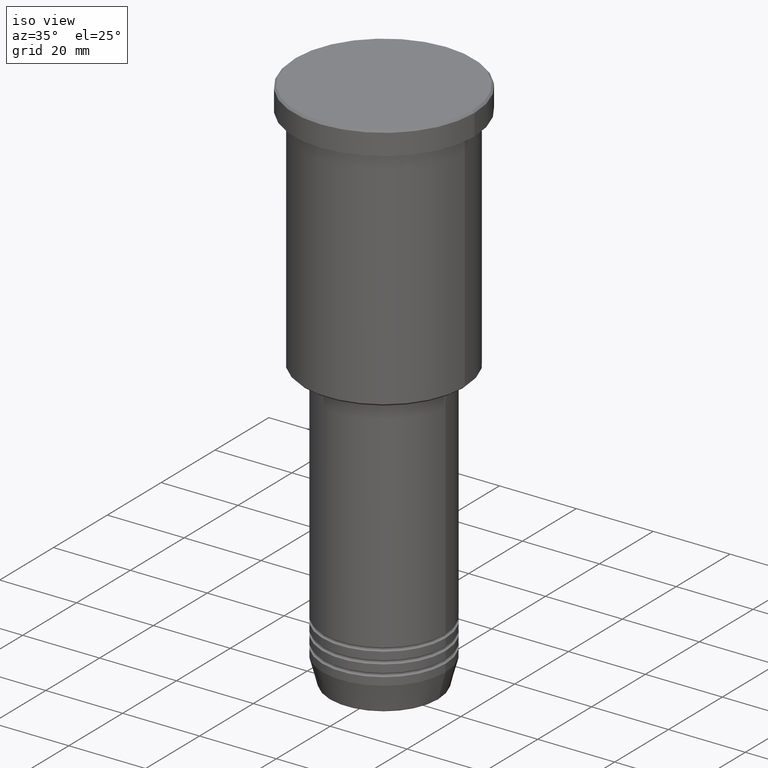
[diagram: clean part render]
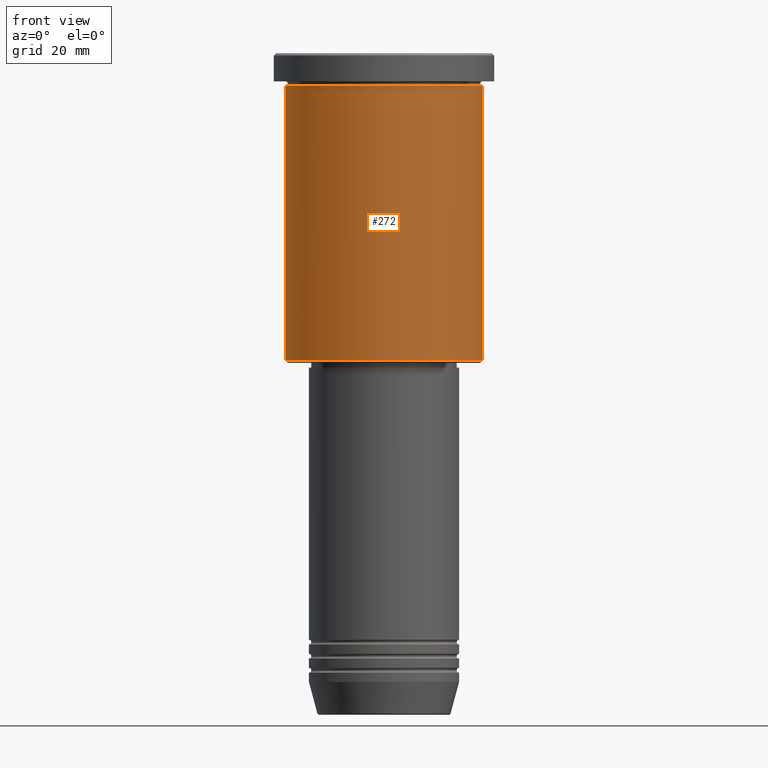
[diagram: tour spotlight — one face highlighted and labeled with its STEP entity id]
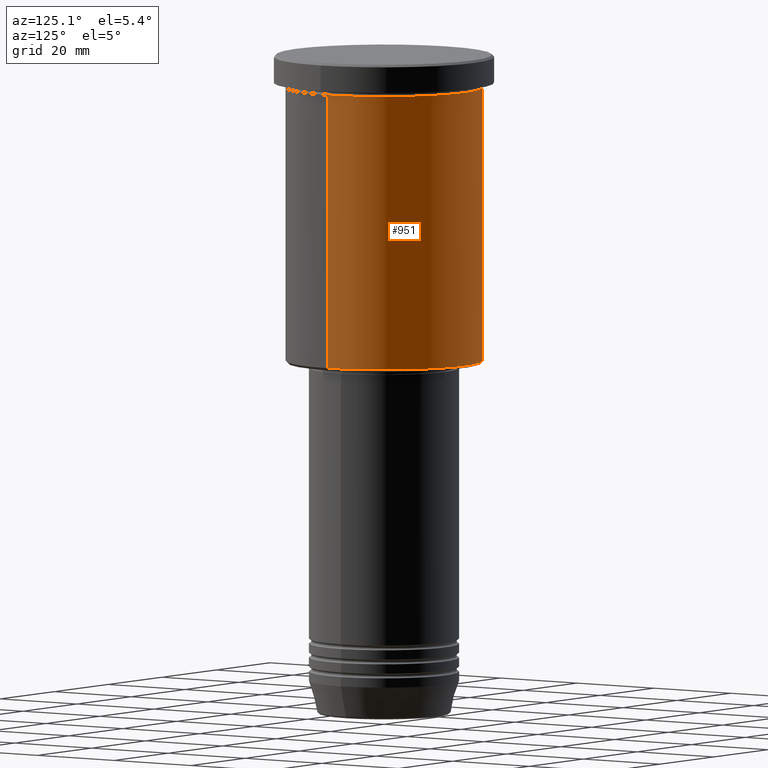
[diagram: tour spotlight — one face highlighted and labeled with its STEP entity id]
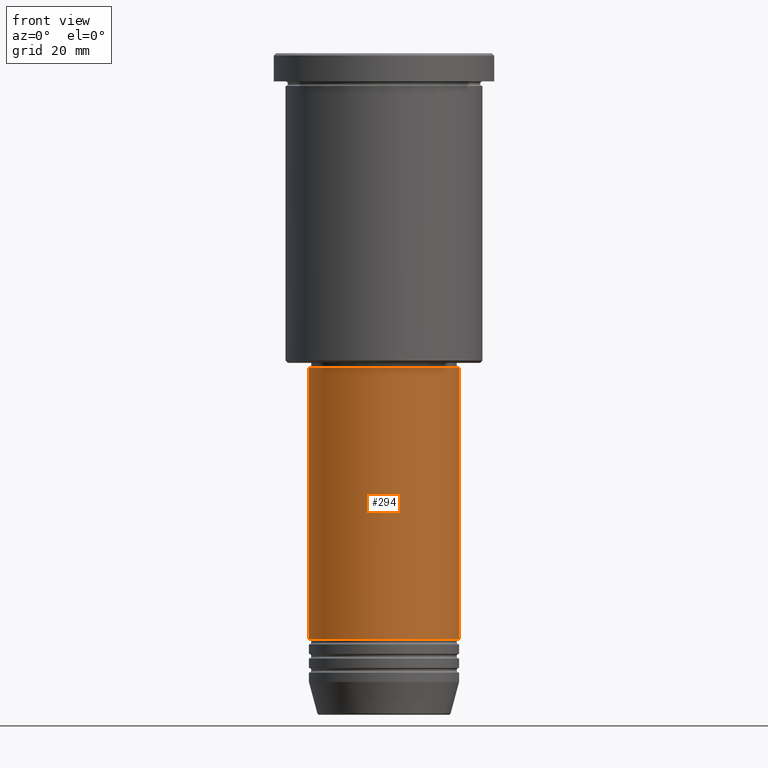
[diagram: tour spotlight — one face highlighted and labeled with its STEP entity id]
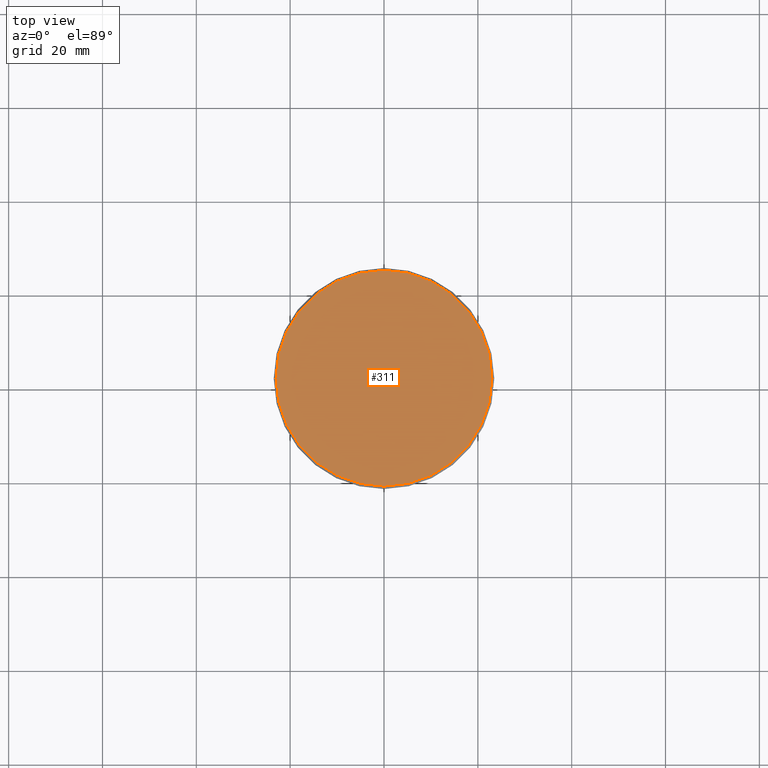
[diagram: tour spotlight — one face highlighted and labeled with its STEP entity id]
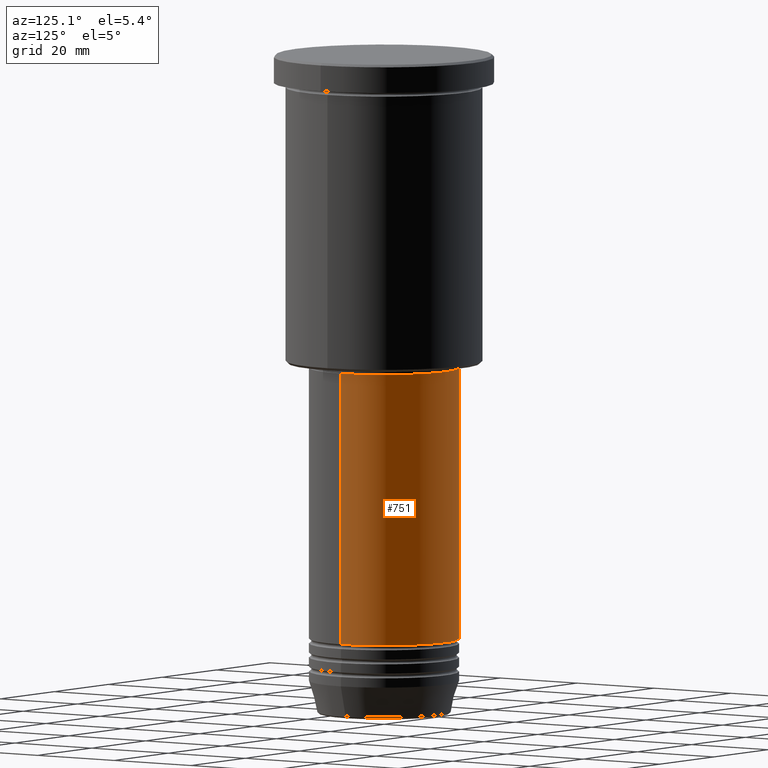
[diagram: tour spotlight — one face highlighted and labeled with its STEP entity id]
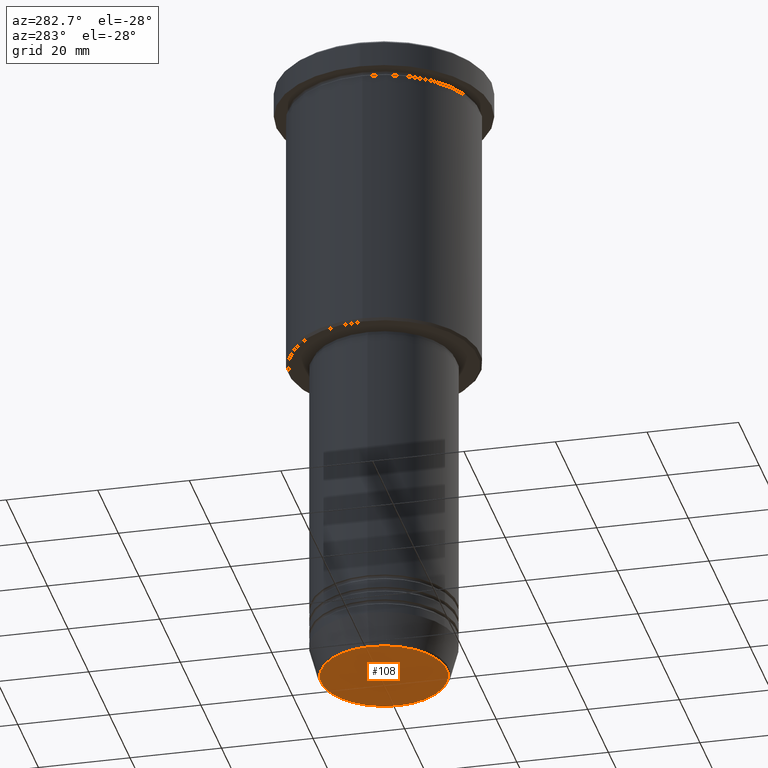
[diagram: tour spotlight — one face highlighted and labeled with its STEP entity id]
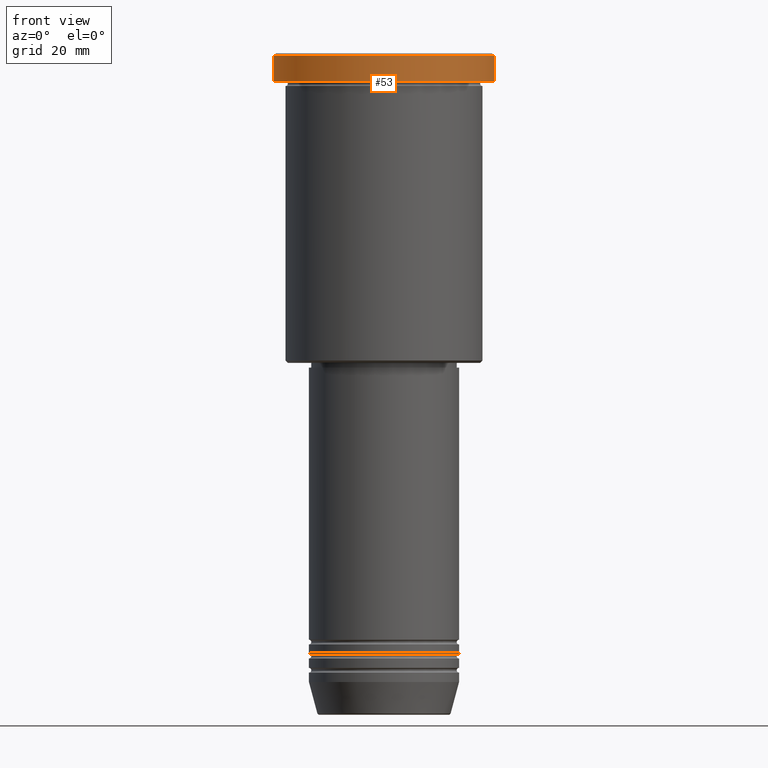
[diagram: tour spotlight — one face highlighted and labeled with its STEP entity id]
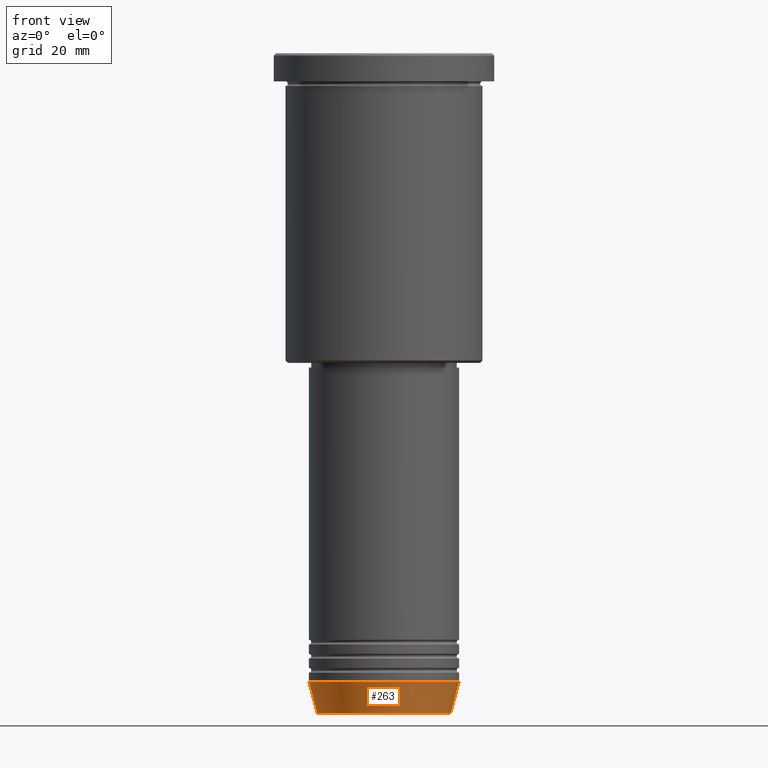
[diagram: tour spotlight — one face highlighted and labeled with its STEP entity id]
A machine part: a face-by-face anatomy tour. The part has 43 B-rep faces; the first image is the clean iso view, then the 8 largest visible faces are spotlighted one at a time (largest first), each with its STEP entity span.

Face 1 — front view, entity #272. In plain terms, the highlighted cylindrical surface (partial cylindrical patch) has radius 21 mm, axis along (-0, -0, 1).
Definition (entity closure, byte-faithful):
#36 = DIRECTION ( 'NONE',  ( -0.000000000000000000, -0.000000000000000000, 1.000000000000000000 ) ) ;
#49 = DIRECTION ( 'NONE',  ( -0.000000000000000000, -0.000000000000000000, 1.000000000000000000 ) ) ;
#94 = CARTESIAN_POINT ( 'NONE',  ( 21.00000000000000000, 0.000000000000000000, -65.50000000000001421 ) ) ;
#131 = CARTESIAN_POINT ( 'NONE',  ( 21.00000000000000000, 0.000000000000000000, 0.000000000000000000 ) ) ;
#143 = EDGE_CURVE ( 'NONE', #267, #1083, #398, .T. ) ;
#267 = VERTEX_POINT ( 'NONE', #94 ) ;
#272 = ADVANCED_FACE ( 'NONE', ( #367 ), #731, .T. ) ;
#283 = VERTEX_POINT ( 'NONE', #1146 ) ;
#367 = FACE_OUTER_BOUND ( 'NONE', #653, .T. ) ;
#398 = LINE ( 'NONE', #131, #1135 ) ;
#401 = EDGE_CURVE ( 'NONE', #283, #638, #707, .T. ) ;
#402 = CARTESIAN_POINT ( 'NONE',  ( 0.000000000000000000, 0.000000000000000000, -6.999999999999994671 ) ) ;
#416 = EDGE_CURVE ( 'NONE', #283, #267, #868, .T. ) ;
#477 = CIRCLE ( 'NONE', #1000, 21.00000000000000000 ) ;
#564 = CARTESIAN_POINT ( 'NONE',  ( 0.000000000000000000, 0.000000000000000000, 0.000000000000000000 ) ) ;
#582 = CARTESIAN_POINT ( 'NONE',  ( -21.00000000000000000, 2.571758278209441661E-15, -6.999999999999994671 ) ) ;
#617 = CARTESIAN_POINT ( 'NONE',  ( -21.00000000000000000, 2.571758278209441661E-15, 0.000000000000000000 ) ) ;
#638 = VERTEX_POINT ( 'NONE', #582 ) ;
#653 = EDGE_LOOP ( 'NONE', ( #682, #834, #800, #728 ) ) ;
#666 = DIRECTION ( 'NONE',  ( 1.000000000000000000, 0.000000000000000000, 0.000000000000000000 ) ) ;
#682 = ORIENTED_EDGE ( 'NONE', *, *, #401, .F. ) ;
#698 = DIRECTION ( 'NONE',  ( -0.000000000000000000, -0.000000000000000000, 1.000000000000000000 ) ) ;
#707 = LINE ( 'NONE', #617, #1075 ) ;
#713 = DIRECTION ( 'NONE',  ( -1.000000000000000000, 0.000000000000000000, 0.000000000000000000 ) ) ;
#728 = ORIENTED_EDGE ( 'NONE', *, *, #1124, .F. ) ;
#731 = CYLINDRICAL_SURFACE ( 'NONE', #1096, 21.00000000000000000 ) ;
#767 = DIRECTION ( 'NONE',  ( 1.000000000000000000, 0.000000000000000000, 0.000000000000000000 ) ) ;
#800 = ORIENTED_EDGE ( 'NONE', *, *, #143, .T. ) ;
#809 = DIRECTION ( 'NONE',  ( -0.000000000000000000, -0.000000000000000000, 1.000000000000000000 ) ) ;
#816 = CARTESIAN_POINT ( 'NONE',  ( 0.000000000000000000, 0.000000000000000000, -65.50000000000001421 ) ) ;
#834 = ORIENTED_EDGE ( 'NONE', *, *, #416, .T. ) ;
#868 = CIRCLE ( 'NONE', #1097, 21.00000000000000000 ) ;
#1000 = AXIS2_PLACEMENT_3D ( 'NONE', #402, #36, #666 ) ;
#1064 = DIRECTION ( 'NONE',  ( -0.000000000000000000, -0.000000000000000000, 1.000000000000000000 ) ) ;
#1075 = VECTOR ( 'NONE', #809, 1000.000000000000000 ) ;
#1083 = VERTEX_POINT ( 'NONE', #1142 ) ;
#1096 = AXIS2_PLACEMENT_3D ( 'NONE', #564, #1064, #767 ) ;
#1097 = AXIS2_PLACEMENT_3D ( 'NONE', #816, #698, #713 ) ;
#1124 = EDGE_CURVE ( 'NONE', #638, #1083, #477, .T. ) ;
#1135 = VECTOR ( 'NONE', #49, 1000.000000000000000 ) ;
#1142 = CARTESIAN_POINT ( 'NONE',  ( 21.00000000000000000, 0.000000000000000000, -6.999999999999994671 ) ) ;
#1146 = CARTESIAN_POINT ( 'NONE',  ( -21.00000000000000000, 2.571758278209441661E-15, -65.50000000000001421 ) ) ;

Face 2 — auxiliary view, entity #951. In plain terms, the highlighted cylindrical surface (partial cylindrical patch) has radius 21 mm, axis along (-0, -0, 1).
Definition (entity closure, byte-faithful):
#5 = FACE_OUTER_BOUND ( 'NONE', #824, .T. ) ;
#22 = AXIS2_PLACEMENT_3D ( 'NONE', #750, #396, #660 ) ;
#40 = AXIS2_PLACEMENT_3D ( 'NONE', #676, #219, #403 ) ;
#49 = DIRECTION ( 'NONE',  ( -0.000000000000000000, -0.000000000000000000, 1.000000000000000000 ) ) ;
#71 = ORIENTED_EDGE ( 'NONE', *, *, #401, .T. ) ;
#94 = CARTESIAN_POINT ( 'NONE',  ( 21.00000000000000000, 0.000000000000000000, -65.50000000000001421 ) ) ;
#102 = EDGE_CURVE ( 'NONE', #267, #283, #805, .T. ) ;
#131 = CARTESIAN_POINT ( 'NONE',  ( 21.00000000000000000, 0.000000000000000000, 0.000000000000000000 ) ) ;
#143 = EDGE_CURVE ( 'NONE', #267, #1083, #398, .T. ) ;
#155 = CIRCLE ( 'NONE', #40, 21.00000000000000000 ) ;
#178 = DIRECTION ( 'NONE',  ( 1.000000000000000000, 0.000000000000000000, 0.000000000000000000 ) ) ;
#181 = ORIENTED_EDGE ( 'NONE', *, *, #102, .T. ) ;
#219 = DIRECTION ( 'NONE',  ( -0.000000000000000000, -0.000000000000000000, 1.000000000000000000 ) ) ;
#267 = VERTEX_POINT ( 'NONE', #94 ) ;
#283 = VERTEX_POINT ( 'NONE', #1146 ) ;
#396 = DIRECTION ( 'NONE',  ( -0.000000000000000000, -0.000000000000000000, 1.000000000000000000 ) ) ;
#398 = LINE ( 'NONE', #131, #1135 ) ;
#401 = EDGE_CURVE ( 'NONE', #283, #638, #707, .T. ) ;
#403 = DIRECTION ( 'NONE',  ( 1.000000000000000000, 0.000000000000000000, 0.000000000000000000 ) ) ;
#467 = ORIENTED_EDGE ( 'NONE', *, *, #727, .F. ) ;
#565 = CYLINDRICAL_SURFACE ( 'NONE', #683, 21.00000000000000000 ) ;
#582 = CARTESIAN_POINT ( 'NONE',  ( -21.00000000000000000, 2.571758278209441661E-15, -6.999999999999994671 ) ) ;
#617 = CARTESIAN_POINT ( 'NONE',  ( -21.00000000000000000, 2.571758278209441661E-15, 0.000000000000000000 ) ) ;
#638 = VERTEX_POINT ( 'NONE', #582 ) ;
#660 = DIRECTION ( 'NONE',  ( -1.000000000000000000, 0.000000000000000000, 0.000000000000000000 ) ) ;
#676 = CARTESIAN_POINT ( 'NONE',  ( 0.000000000000000000, 0.000000000000000000, -6.999999999999994671 ) ) ;
#683 = AXIS2_PLACEMENT_3D ( 'NONE', #841, #911, #178 ) ;
#707 = LINE ( 'NONE', #617, #1075 ) ;
#727 = EDGE_CURVE ( 'NONE', #1083, #638, #155, .T. ) ;
#750 = CARTESIAN_POINT ( 'NONE',  ( 0.000000000000000000, 0.000000000000000000, -65.50000000000001421 ) ) ;
#805 = CIRCLE ( 'NONE', #22, 21.00000000000000000 ) ;
#809 = DIRECTION ( 'NONE',  ( -0.000000000000000000, -0.000000000000000000, 1.000000000000000000 ) ) ;
#824 = EDGE_LOOP ( 'NONE', ( #181, #71, #467, #1094 ) ) ;
#841 = CARTESIAN_POINT ( 'NONE',  ( 0.000000000000000000, 0.000000000000000000, 0.000000000000000000 ) ) ;
#911 = DIRECTION ( 'NONE',  ( -0.000000000000000000, -0.000000000000000000, 1.000000000000000000 ) ) ;
#951 = ADVANCED_FACE ( 'NONE', ( #5 ), #565, .T. ) ;
#1075 = VECTOR ( 'NONE', #809, 1000.000000000000000 ) ;
#1083 = VERTEX_POINT ( 'NONE', #1142 ) ;
#1094 = ORIENTED_EDGE ( 'NONE', *, *, #143, .F. ) ;
#1135 = VECTOR ( 'NONE', #49, 1000.000000000000000 ) ;
#1142 = CARTESIAN_POINT ( 'NONE',  ( 21.00000000000000000, 0.000000000000000000, -6.999999999999994671 ) ) ;
#1146 = CARTESIAN_POINT ( 'NONE',  ( -21.00000000000000000, 2.571758278209441661E-15, -65.50000000000001421 ) ) ;

Face 3 — front view, entity #294. In plain terms, the highlighted cylindrical surface (partial cylindrical patch) has radius 16 mm, axis along (-0, -0, 1).
Definition (entity closure, byte-faithful):
#41 = EDGE_CURVE ( 'NONE', #925, #736, #394, .T. ) ;
#79 = AXIS2_PLACEMENT_3D ( 'NONE', #1041, #1134, #490 ) ;
#97 = AXIS2_PLACEMENT_3D ( 'NONE', #1165, #709, #1012 ) ;
#98 = CARTESIAN_POINT ( 'NONE',  ( -16.00000000000000000, 1.959434878635765131E-15, -67.00000000000000000 ) ) ;
#167 = VERTEX_POINT ( 'NONE', #529 ) ;
#175 = ORIENTED_EDGE ( 'NONE', *, *, #658, .T. ) ;
#216 = LINE ( 'NONE', #1034, #869 ) ;
#221 = ORIENTED_EDGE ( 'NONE', *, *, #675, .F. ) ;
#241 = ORIENTED_EDGE ( 'NONE', *, *, #916, .T. ) ;
#246 = AXIS2_PLACEMENT_3D ( 'NONE', #520, #774, #1069 ) ;
#256 = CARTESIAN_POINT ( 'NONE',  ( -16.00000000000000000, 1.959434878635765131E-15, -124.9999999999999716 ) ) ;
#294 = ADVANCED_FACE ( 'NONE', ( #931 ), #392, .T. ) ;
#337 = VECTOR ( 'NONE', #466, 1000.000000000000000 ) ;
#361 = LINE ( 'NONE', #1009, #337 ) ;
#374 = VERTEX_POINT ( 'NONE', #256 ) ;
#392 = CYLINDRICAL_SURFACE ( 'NONE', #97, 16.00000000000000000 ) ;
#394 = CIRCLE ( 'NONE', #246, 16.00000000000000000 ) ;
#466 = DIRECTION ( 'NONE',  ( -0.000000000000000000, -0.000000000000000000, 1.000000000000000000 ) ) ;
#490 = DIRECTION ( 'NONE',  ( 1.000000000000000000, 0.000000000000000000, 0.000000000000000000 ) ) ;
#520 = CARTESIAN_POINT ( 'NONE',  ( 0.000000000000000000, 0.000000000000000000, -67.00000000000000000 ) ) ;
#529 = CARTESIAN_POINT ( 'NONE',  ( 16.00000000000000000, 0.000000000000000000, -124.9999999999999716 ) ) ;
#595 = CARTESIAN_POINT ( 'NONE',  ( 16.00000000000000000, 0.000000000000000000, -67.00000000000000000 ) ) ;
#629 = CIRCLE ( 'NONE', #79, 16.00000000000000000 ) ;
#658 = EDGE_CURVE ( 'NONE', #374, #167, #629, .T. ) ;
#675 = EDGE_CURVE ( 'NONE', #374, #925, #216, .T. ) ;
#709 = DIRECTION ( 'NONE',  ( -0.000000000000000000, -0.000000000000000000, 1.000000000000000000 ) ) ;
#736 = VERTEX_POINT ( 'NONE', #595 ) ;
#774 = DIRECTION ( 'NONE',  ( -0.000000000000000000, -0.000000000000000000, 1.000000000000000000 ) ) ;
#776 = ORIENTED_EDGE ( 'NONE', *, *, #41, .F. ) ;
#869 = VECTOR ( 'NONE', #948, 1000.000000000000000 ) ;
#916 = EDGE_CURVE ( 'NONE', #167, #736, #361, .T. ) ;
#925 = VERTEX_POINT ( 'NONE', #98 ) ;
#931 = FACE_OUTER_BOUND ( 'NONE', #1178, .T. ) ;
#948 = DIRECTION ( 'NONE',  ( -0.000000000000000000, -0.000000000000000000, 1.000000000000000000 ) ) ;
#1009 = CARTESIAN_POINT ( 'NONE',  ( 16.00000000000000000, 0.000000000000000000, 0.000000000000000000 ) ) ;
#1012 = DIRECTION ( 'NONE',  ( 1.000000000000000000, 0.000000000000000000, 0.000000000000000000 ) ) ;
#1034 = CARTESIAN_POINT ( 'NONE',  ( -16.00000000000000000, 1.959434878635765131E-15, 0.000000000000000000 ) ) ;
#1041 = CARTESIAN_POINT ( 'NONE',  ( 0.000000000000000000, 0.000000000000000000, -124.9999999999999716 ) ) ;
#1069 = DIRECTION ( 'NONE',  ( 1.000000000000000000, 0.000000000000000000, 0.000000000000000000 ) ) ;
#1134 = DIRECTION ( 'NONE',  ( -0.000000000000000000, -0.000000000000000000, 1.000000000000000000 ) ) ;
#1165 = CARTESIAN_POINT ( 'NONE',  ( 0.000000000000000000, 0.000000000000000000, 0.000000000000000000 ) ) ;
#1178 = EDGE_LOOP ( 'NONE', ( #221, #175, #241, #776 ) ) ;

Face 4 — top view, entity #311. In plain terms, the highlighted planar face has unit normal (0, -0, 1).
Definition (entity closure, byte-faithful):
#3 = VERTEX_POINT ( 'NONE', #365 ) ;
#117 = CIRCLE ( 'NONE', #669, 23.00000000000002487 ) ;
#170 = DIRECTION ( 'NONE',  ( 1.000000000000000000, 0.000000000000000000, 0.000000000000000000 ) ) ;
#261 = CARTESIAN_POINT ( 'NONE',  ( 0.000000000000000000, 0.000000000000000000, 0.000000000000000000 ) ) ;
#311 = ADVANCED_FACE ( 'NONE', ( #718 ), #1092, .T. ) ;
#333 = ORIENTED_EDGE ( 'NONE', *, *, #554, .T. ) ;
#336 = CARTESIAN_POINT ( 'NONE',  ( 0.000000000000000000, 0.000000000000000000, 0.000000000000000000 ) ) ;
#365 = CARTESIAN_POINT ( 'NONE',  ( 23.00000000000002487, 2.847303808017597717E-15, 0.000000000000000000 ) ) ;
#476 = DIRECTION ( 'NONE',  ( -0.000000000000000000, -0.000000000000000000, 1.000000000000000000 ) ) ;
#551 = CARTESIAN_POINT ( 'NONE',  ( 0.000000000000000000, 0.000000000000000000, 0.000000000000000000 ) ) ;
#554 = EDGE_CURVE ( 'NONE', #559, #3, #117, .T. ) ;
#559 = VERTEX_POINT ( 'NONE', #1123 ) ;
#603 = DIRECTION ( 'NONE',  ( -0.000000000000000000, -0.000000000000000000, 1.000000000000000000 ) ) ;
#610 = DIRECTION ( 'NONE',  ( 1.000000000000000000, 0.000000000000000000, 0.000000000000000000 ) ) ;
#612 = EDGE_LOOP ( 'NONE', ( #333, #1017 ) ) ;
#669 = AXIS2_PLACEMENT_3D ( 'NONE', #551, #476, #752 ) ;
#718 = FACE_OUTER_BOUND ( 'NONE', #612, .T. ) ;
#752 = DIRECTION ( 'NONE',  ( 1.000000000000000000, 0.000000000000000000, 0.000000000000000000 ) ) ;
#873 = EDGE_CURVE ( 'NONE', #3, #559, #905, .T. ) ;
#890 = DIRECTION ( 'NONE',  ( 0.000000000000000000, -0.000000000000000000, 1.000000000000000000 ) ) ;
#905 = CIRCLE ( 'NONE', #1058, 23.00000000000002487 ) ;
#1017 = ORIENTED_EDGE ( 'NONE', *, *, #873, .T. ) ;
#1058 = AXIS2_PLACEMENT_3D ( 'NONE', #336, #603, #170 ) ;
#1092 = PLANE ( 'NONE',  #1151 ) ;
#1123 = CARTESIAN_POINT ( 'NONE',  ( -23.00000000000002487, 0.000000000000000000, 0.000000000000000000 ) ) ;
#1151 = AXIS2_PLACEMENT_3D ( 'NONE', #261, #890, #610 ) ;

Face 5 — auxiliary view, entity #751. In plain terms, the highlighted cylindrical surface (partial cylindrical patch) has radius 16 mm, axis along (-0, -0, 1).
Definition (entity closure, byte-faithful):
#98 = CARTESIAN_POINT ( 'NONE',  ( -16.00000000000000000, 1.959434878635765131E-15, -67.00000000000000000 ) ) ;
#122 = DIRECTION ( 'NONE',  ( -0.000000000000000000, -0.000000000000000000, 1.000000000000000000 ) ) ;
#163 = CYLINDRICAL_SURFACE ( 'NONE', #982, 16.00000000000000000 ) ;
#167 = VERTEX_POINT ( 'NONE', #529 ) ;
#210 = CIRCLE ( 'NONE', #652, 16.00000000000000000 ) ;
#216 = LINE ( 'NONE', #1034, #869 ) ;
#256 = CARTESIAN_POINT ( 'NONE',  ( -16.00000000000000000, 1.959434878635765131E-15, -124.9999999999999716 ) ) ;
#323 = CIRCLE ( 'NONE', #962, 16.00000000000000000 ) ;
#337 = VECTOR ( 'NONE', #466, 1000.000000000000000 ) ;
#358 = EDGE_LOOP ( 'NONE', ( #1182, #1105, #644, #526 ) ) ;
#361 = LINE ( 'NONE', #1009, #337 ) ;
#374 = VERTEX_POINT ( 'NONE', #256 ) ;
#466 = DIRECTION ( 'NONE',  ( -0.000000000000000000, -0.000000000000000000, 1.000000000000000000 ) ) ;
#526 = ORIENTED_EDGE ( 'NONE', *, *, #916, .F. ) ;
#529 = CARTESIAN_POINT ( 'NONE',  ( 16.00000000000000000, 0.000000000000000000, -124.9999999999999716 ) ) ;
#534 = DIRECTION ( 'NONE',  ( -0.000000000000000000, -0.000000000000000000, 1.000000000000000000 ) ) ;
#580 = CARTESIAN_POINT ( 'NONE',  ( 0.000000000000000000, 0.000000000000000000, -124.9999999999999716 ) ) ;
#595 = CARTESIAN_POINT ( 'NONE',  ( 16.00000000000000000, 0.000000000000000000, -67.00000000000000000 ) ) ;
#615 = DIRECTION ( 'NONE',  ( -0.000000000000000000, -0.000000000000000000, 1.000000000000000000 ) ) ;
#639 = EDGE_CURVE ( 'NONE', #167, #374, #323, .T. ) ;
#644 = ORIENTED_EDGE ( 'NONE', *, *, #821, .F. ) ;
#652 = AXIS2_PLACEMENT_3D ( 'NONE', #807, #615, #1162 ) ;
#675 = EDGE_CURVE ( 'NONE', #374, #925, #216, .T. ) ;
#736 = VERTEX_POINT ( 'NONE', #595 ) ;
#751 = ADVANCED_FACE ( 'NONE', ( #757 ), #163, .T. ) ;
#757 = FACE_OUTER_BOUND ( 'NONE', #358, .T. ) ;
#786 = DIRECTION ( 'NONE',  ( 1.000000000000000000, 0.000000000000000000, 0.000000000000000000 ) ) ;
#807 = CARTESIAN_POINT ( 'NONE',  ( 0.000000000000000000, 0.000000000000000000, -67.00000000000000000 ) ) ;
#821 = EDGE_CURVE ( 'NONE', #736, #925, #210, .T. ) ;
#869 = VECTOR ( 'NONE', #948, 1000.000000000000000 ) ;
#916 = EDGE_CURVE ( 'NONE', #167, #736, #361, .T. ) ;
#925 = VERTEX_POINT ( 'NONE', #98 ) ;
#948 = DIRECTION ( 'NONE',  ( -0.000000000000000000, -0.000000000000000000, 1.000000000000000000 ) ) ;
#962 = AXIS2_PLACEMENT_3D ( 'NONE', #580, #122, #1127 ) ;
#982 = AXIS2_PLACEMENT_3D ( 'NONE', #988, #534, #786 ) ;
#988 = CARTESIAN_POINT ( 'NONE',  ( 0.000000000000000000, 0.000000000000000000, 0.000000000000000000 ) ) ;
#1009 = CARTESIAN_POINT ( 'NONE',  ( 16.00000000000000000, 0.000000000000000000, 0.000000000000000000 ) ) ;
#1034 = CARTESIAN_POINT ( 'NONE',  ( -16.00000000000000000, 1.959434878635765131E-15, 0.000000000000000000 ) ) ;
#1105 = ORIENTED_EDGE ( 'NONE', *, *, #675, .T. ) ;
#1127 = DIRECTION ( 'NONE',  ( 1.000000000000000000, 0.000000000000000000, 0.000000000000000000 ) ) ;
#1162 = DIRECTION ( 'NONE',  ( 1.000000000000000000, 0.000000000000000000, 0.000000000000000000 ) ) ;
#1182 = ORIENTED_EDGE ( 'NONE', *, *, #639, .T. ) ;

Face 6 — auxiliary view, entity #108. In plain terms, the highlighted planar face has unit normal (0, -0, 1).
Definition (entity closure, byte-faithful):
#108 = ADVANCED_FACE ( 'NONE', ( #1133 ), #215, .F. ) ;
#137 = DIRECTION ( 'NONE',  ( 1.000000000000000000, 0.000000000000000000, 0.000000000000000000 ) ) ;
#140 = DIRECTION ( 'NONE',  ( 1.000000000000000000, 0.000000000000000000, 0.000000000000000000 ) ) ;
#182 = EDGE_LOOP ( 'NONE', ( #472, #457 ) ) ;
#201 = VERTEX_POINT ( 'NONE', #699 ) ;
#215 = PLANE ( 'NONE',  #958 ) ;
#299 = CARTESIAN_POINT ( 'NONE',  ( 0.000000000000000000, 0.000000000000000000, -141.0000000000000000 ) ) ;
#304 = DIRECTION ( 'NONE',  ( 1.000000000000000000, 0.000000000000000000, 0.000000000000000000 ) ) ;
#370 = CARTESIAN_POINT ( 'NONE',  ( -13.74069215899265828, 1.712322416342415986E-15, -141.0000000000000000 ) ) ;
#376 = AXIS2_PLACEMENT_3D ( 'NONE', #1054, #482, #137 ) ;
#436 = CIRCLE ( 'NONE', #1059, 13.74069215899265828 ) ;
#457 = ORIENTED_EDGE ( 'NONE', *, *, #1093, .T. ) ;
#472 = ORIENTED_EDGE ( 'NONE', *, *, #1067, .T. ) ;
#482 = DIRECTION ( 'NONE',  ( 0.000000000000000000, 0.000000000000000000, -1.000000000000000000 ) ) ;
#547 = VERTEX_POINT ( 'NONE', #370 ) ;
#699 = CARTESIAN_POINT ( 'NONE',  ( 13.74069215899265828, 0.000000000000000000, -141.0000000000000000 ) ) ;
#756 = DIRECTION ( 'NONE',  ( 0.000000000000000000, 0.000000000000000000, -1.000000000000000000 ) ) ;
#958 = AXIS2_PLACEMENT_3D ( 'NONE', #299, #1128, #140 ) ;
#1039 = CARTESIAN_POINT ( 'NONE',  ( 0.000000000000000000, 0.000000000000000000, -141.0000000000000000 ) ) ;
#1054 = CARTESIAN_POINT ( 'NONE',  ( 0.000000000000000000, 0.000000000000000000, -141.0000000000000000 ) ) ;
#1059 = AXIS2_PLACEMENT_3D ( 'NONE', #1039, #756, #304 ) ;
#1067 = EDGE_CURVE ( 'NONE', #201, #547, #1150, .T. ) ;
#1093 = EDGE_CURVE ( 'NONE', #547, #201, #436, .T. ) ;
#1128 = DIRECTION ( 'NONE',  ( 0.000000000000000000, -0.000000000000000000, 1.000000000000000000 ) ) ;
#1133 = FACE_OUTER_BOUND ( 'NONE', #182, .T. ) ;
#1150 = CIRCLE ( 'NONE', #376, 13.74069215899265828 ) ;

Face 7 — front view, entity #53. In plain terms, the highlighted cylindrical surface (partial cylindrical patch) has radius 23.5 mm, axis along (-0, -0, 1).
Definition (entity closure, byte-faithful):
#4 = AXIS2_PLACEMENT_3D ( 'NONE', #1023, #185, #377 ) ;
#50 = VERTEX_POINT ( 'NONE', #797 ) ;
#53 = ADVANCED_FACE ( 'NONE', ( #313 ), #227, .T. ) ;
#109 = ORIENTED_EDGE ( 'NONE', *, *, #523, .T. ) ;
#138 = LINE ( 'NONE', #777, #479 ) ;
#145 = DIRECTION ( 'NONE',  ( -0.000000000000000000, -0.000000000000000000, 1.000000000000000000 ) ) ;
#156 = EDGE_LOOP ( 'NONE', ( #794, #109, #575, #1016 ) ) ;
#185 = DIRECTION ( 'NONE',  ( -0.000000000000000000, -0.000000000000000000, 1.000000000000000000 ) ) ;
#188 = CARTESIAN_POINT ( 'NONE',  ( 23.50000000000000000, 0.000000000000000000, 0.000000000000000000 ) ) ;
#227 = CYLINDRICAL_SURFACE ( 'NONE', #781, 23.50000000000000000 ) ;
#280 = EDGE_CURVE ( 'NONE', #1090, #50, #138, .T. ) ;
#290 = CIRCLE ( 'NONE', #833, 23.50000000000000000 ) ;
#309 = VECTOR ( 'NONE', #724, 1000.000000000000000 ) ;
#313 = FACE_OUTER_BOUND ( 'NONE', #156, .T. ) ;
#338 = CARTESIAN_POINT ( 'NONE',  ( 0.000000000000000000, 0.000000000000000000, -0.4999999999999726885 ) ) ;
#353 = CARTESIAN_POINT ( 'NONE',  ( 23.50000000000000000, 0.000000000000000000, -0.4999999999999726885 ) ) ;
#377 = DIRECTION ( 'NONE',  ( 1.000000000000000000, 0.000000000000000000, 0.000000000000000000 ) ) ;
#389 = EDGE_CURVE ( 'NONE', #972, #50, #290, .T. ) ;
#417 = DIRECTION ( 'NONE',  ( 1.000000000000000000, 0.000000000000000000, 0.000000000000000000 ) ) ;
#471 = LINE ( 'NONE', #188, #309 ) ;
#479 = VECTOR ( 'NONE', #503, 1000.000000000000000 ) ;
#503 = DIRECTION ( 'NONE',  ( -0.000000000000000000, -0.000000000000000000, 1.000000000000000000 ) ) ;
#511 = DIRECTION ( 'NONE',  ( 0.000000000000000000, 0.000000000000000000, -1.000000000000000000 ) ) ;
#523 = EDGE_CURVE ( 'NONE', #1090, #828, #806, .T. ) ;
#550 = EDGE_CURVE ( 'NONE', #828, #972, #471, .T. ) ;
#575 = ORIENTED_EDGE ( 'NONE', *, *, #550, .T. ) ;
#599 = CARTESIAN_POINT ( 'NONE',  ( 23.50000000000000000, 0.000000000000000000, -5.999999999999994671 ) ) ;
#724 = DIRECTION ( 'NONE',  ( -0.000000000000000000, -0.000000000000000000, 1.000000000000000000 ) ) ;
#777 = CARTESIAN_POINT ( 'NONE',  ( -23.50000000000000000, 2.877919977996280320E-15, 0.000000000000000000 ) ) ;
#781 = AXIS2_PLACEMENT_3D ( 'NONE', #966, #145, #1147 ) ;
#794 = ORIENTED_EDGE ( 'NONE', *, *, #280, .F. ) ;
#797 = CARTESIAN_POINT ( 'NONE',  ( -23.50000000000000000, 2.877919977996280320E-15, -0.4999999999999726885 ) ) ;
#806 = CIRCLE ( 'NONE', #4, 23.50000000000000000 ) ;
#828 = VERTEX_POINT ( 'NONE', #599 ) ;
#833 = AXIS2_PLACEMENT_3D ( 'NONE', #338, #511, #417 ) ;
#966 = CARTESIAN_POINT ( 'NONE',  ( 0.000000000000000000, 0.000000000000000000, 0.000000000000000000 ) ) ;
#972 = VERTEX_POINT ( 'NONE', #353 ) ;
#1016 = ORIENTED_EDGE ( 'NONE', *, *, #389, .T. ) ;
#1023 = CARTESIAN_POINT ( 'NONE',  ( 0.000000000000000000, 0.000000000000000000, -5.999999999999994671 ) ) ;
#1090 = VERTEX_POINT ( 'NONE', #1122 ) ;
#1122 = CARTESIAN_POINT ( 'NONE',  ( -23.50000000000000000, 2.877919977996280320E-15, -5.999999999999994671 ) ) ;
#1147 = DIRECTION ( 'NONE',  ( 1.000000000000000000, 0.000000000000000000, 0.000000000000000000 ) ) ;

Face 8 — front view, entity #263. In plain terms, the highlighted conical surface has half-angle 15 deg.
Definition (entity closure, byte-faithful):
#68 = EDGE_CURVE ( 'NONE', #1125, #567, #901, .T. ) ;
#75 = CIRCLE ( 'NONE', #784, 16.00000000000000000 ) ;
#123 = EDGE_CURVE ( 'NONE', #1125, #992, #491, .T. ) ;
#147 = ORIENTED_EDGE ( 'NONE', *, *, #385, .F. ) ;
#228 = DIRECTION ( 'NONE',  ( 0.2588190451025213501, 0.000000000000000000, 0.9659258262890680902 ) ) ;
#263 = ADVANCED_FACE ( 'NONE', ( #327 ), #847, .T. ) ;
#274 = EDGE_LOOP ( 'NONE', ( #772, #851, #1108, #147 ) ) ;
#312 = CARTESIAN_POINT ( 'NONE',  ( 16.00000000000000000, 0.000000000000000000, -134.0000000000000000 ) ) ;
#325 = CARTESIAN_POINT ( 'NONE',  ( 0.000000000000000000, 0.000000000000000000, -140.6294095225512706 ) ) ;
#327 = FACE_OUTER_BOUND ( 'NONE', #274, .T. ) ;
#384 = CARTESIAN_POINT ( 'NONE',  ( 16.00000000000000000, 0.000000000000000000, -134.0000000000000000 ) ) ;
#385 = EDGE_CURVE ( 'NONE', #992, #1131, #75, .T. ) ;
#422 = DIRECTION ( 'NONE',  ( -0.000000000000000000, -0.000000000000000000, 1.000000000000000000 ) ) ;
#427 = CARTESIAN_POINT ( 'NONE',  ( 0.000000000000000000, 0.000000000000000000, -134.0000000000000000 ) ) ;
#491 = LINE ( 'NONE', #1052, #704 ) ;
#567 = VERTEX_POINT ( 'NONE', #917 ) ;
#586 = LINE ( 'NONE', #384, #708 ) ;
#643 = DIRECTION ( 'NONE',  ( -0.000000000000000000, -0.000000000000000000, 1.000000000000000000 ) ) ;
#670 = EDGE_CURVE ( 'NONE', #567, #1131, #586, .T. ) ;
#689 = DIRECTION ( 'NONE',  ( 1.000000000000000000, 0.000000000000000000, 0.000000000000000000 ) ) ;
#704 = VECTOR ( 'NONE', #866, 1000.000000000000000 ) ;
#708 = VECTOR ( 'NONE', #228, 1000.000000000000000 ) ;
#772 = ORIENTED_EDGE ( 'NONE', *, *, #123, .F. ) ;
#784 = AXIS2_PLACEMENT_3D ( 'NONE', #427, #422, #792 ) ;
#792 = DIRECTION ( 'NONE',  ( 1.000000000000000000, 0.000000000000000000, 0.000000000000000000 ) ) ;
#823 = DIRECTION ( 'NONE',  ( 1.000000000000000000, 0.000000000000000000, 0.000000000000000000 ) ) ;
#830 = AXIS2_PLACEMENT_3D ( 'NONE', #325, #643, #689 ) ;
#847 = CONICAL_SURFACE ( 'NONE', #1056, 16.00000000000000000, 0.2617993877991500740 ) ;
#851 = ORIENTED_EDGE ( 'NONE', *, *, #68, .T. ) ;
#866 = DIRECTION ( 'NONE',  ( -0.2588190451025213501, 3.169619151431772337E-17, 0.9659258262890680902 ) ) ;
#901 = CIRCLE ( 'NONE', #830, 14.22365507213718772 ) ;
#917 = CARTESIAN_POINT ( 'NONE',  ( 14.22365507213718772, 0.000000000000000000, -140.6294095225512706 ) ) ;
#944 = CARTESIAN_POINT ( 'NONE',  ( -14.22365507213718772, 1.850665122131323337E-15, -140.6294095225512706 ) ) ;
#992 = VERTEX_POINT ( 'NONE', #1098 ) ;
#997 = CARTESIAN_POINT ( 'NONE',  ( 0.000000000000000000, 0.000000000000000000, -134.0000000000000000 ) ) ;
#1006 = DIRECTION ( 'NONE',  ( -0.000000000000000000, -0.000000000000000000, 1.000000000000000000 ) ) ;
#1052 = CARTESIAN_POINT ( 'NONE',  ( -16.00000000000000000, 1.959434878635765131E-15, -134.0000000000000000 ) ) ;
#1056 = AXIS2_PLACEMENT_3D ( 'NONE', #997, #1006, #823 ) ;
#1098 = CARTESIAN_POINT ( 'NONE',  ( -16.00000000000000000, 1.959434878635765131E-15, -134.0000000000000000 ) ) ;
#1108 = ORIENTED_EDGE ( 'NONE', *, *, #670, .T. ) ;
#1125 = VERTEX_POINT ( 'NONE', #944 ) ;
#1131 = VERTEX_POINT ( 'NONE', #312 ) ;